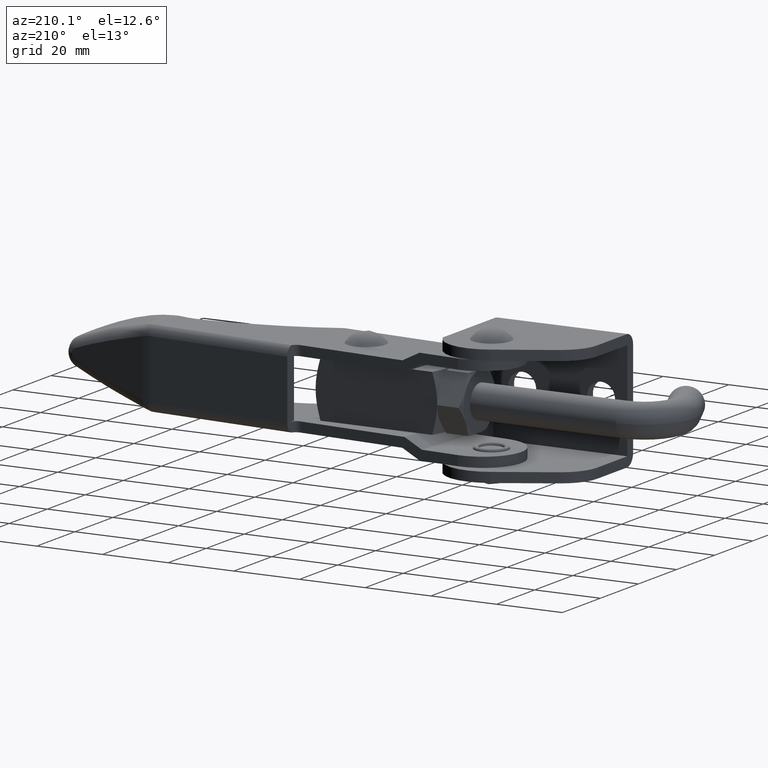
[diagram: clean part render]
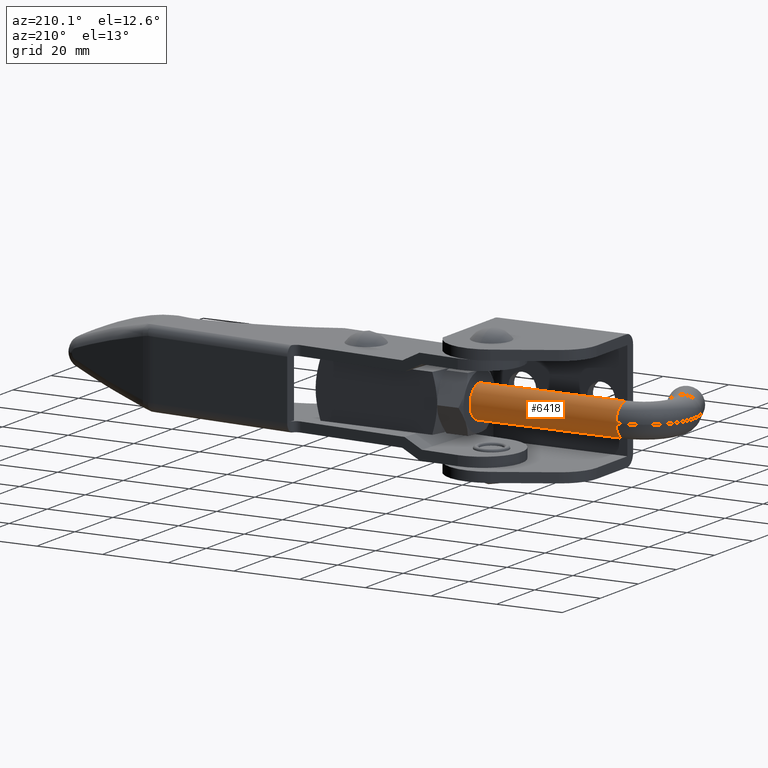
[diagram: same view with one face highlighted and labeled with its STEP entity id]
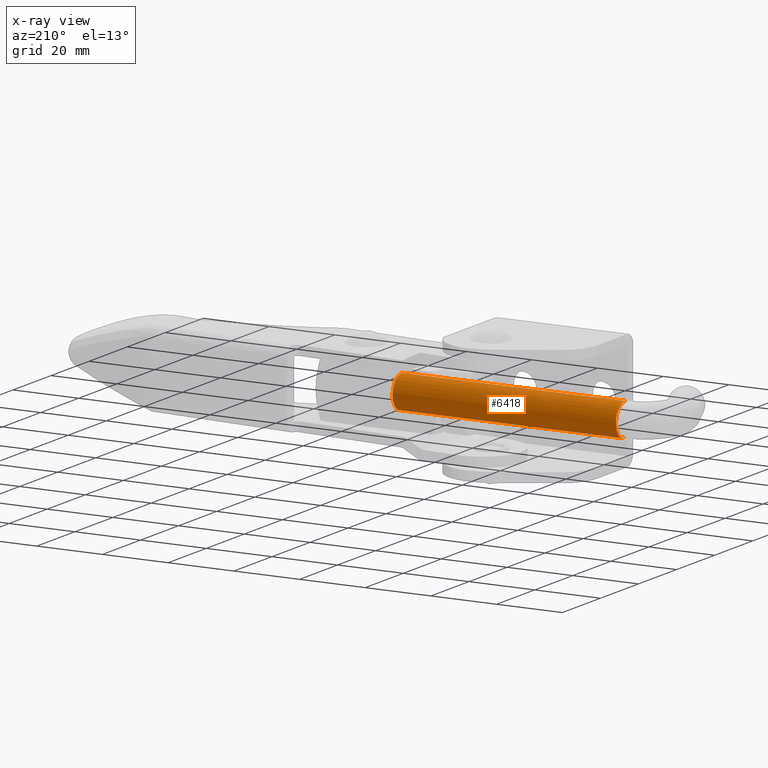
[diagram: x-ray of the same camera — body ghosted, the highlighted face saturated]
A machine part, auxiliary view. The second image highlights one B-rep face of the part: STEP entity #6418.
The next image is the same camera in x-ray: the body ghosted, the highlighted face saturated — about 0% of this face is hidden behind the body in this view.
In plain terms, the highlighted cylindrical surface (edge-blend (fillet) strip) has radius 5 mm, axis along (1, 0.0007, -0).
Its self-contained STEP definition (entity closure, byte-faithful):
#4 = DIRECTION ( 'NONE',  ( 0.0000000000000000000, 4.186201327120098000E-030, -1.000000000000000000 ) ) ;
#131 = CIRCLE ( 'NONE', #8940, 4.999999999999997300 ) ;
#233 = VERTEX_POINT ( 'NONE', #961 ) ;
#292 = EDGE_CURVE ( 'NONE', #3102, #7408, #2602, .T. ) ;
#489 = DIRECTION ( 'NONE',  ( 0.0000000000000000000, 4.186201327120098000E-030, -1.000000000000000000 ) ) ;
#626 = VECTOR ( 'NONE', #7035, 1000.000000000000000 ) ;
#721 = DIRECTION ( 'NONE',  ( 0.0000000000000000000, 4.186201327120098000E-030, -1.000000000000000000 ) ) ;
#961 = CARTESIAN_POINT ( 'NONE',  ( -1.000000000000014700, 2.093100663560047900E-029, -4.999999999999997300 ) ) ;
#1062 = DIRECTION ( 'NONE',  ( -1.000000000000000000, -0.0000000000000000000, -4.930380657631322000E-031 ) ) ;
#1087 = CIRCLE ( 'NONE', #8280, 4.999999999999997300 ) ;
#1239 = CARTESIAN_POINT ( 'NONE',  ( -69.00000000000005700, 2.093100663560047900E-029, -4.999999999999997300 ) ) ;
#2014 = CYLINDRICAL_SURFACE ( 'NONE', #6352, 4.999999999999997300 ) ;
#2036 = ORIENTED_EDGE ( 'NONE', *, *, #2582, .F. ) ;
#2238 = FACE_OUTER_BOUND ( 'NONE', #8328, .T. ) ;
#2404 = ORIENTED_EDGE ( 'NONE', *, *, #6614, .T. ) ;
#2582 = EDGE_CURVE ( 'NONE', #5883, #233, #8657, .T. ) ;
#2602 = LINE ( 'NONE', #2786, #626 ) ;
#2704 = CARTESIAN_POINT ( 'NONE',  ( -69.00000000000005700, 0.0000000000000000000, -2.465190328815661900E-029 ) ) ;
#2786 = CARTESIAN_POINT ( 'NONE',  ( -69.00000000000005700, 6.123233995736557200E-016, 4.999999999999997300 ) ) ;
#2965 = CARTESIAN_POINT ( 'NONE',  ( -69.00000000000005700, 4.999999999999995600, 6.279301990680147100E-029 ) ) ;
#3102 = VERTEX_POINT ( 'NONE', #5226 ) ;
#3121 = ORIENTED_EDGE ( 'NONE', *, *, #292, .T. ) ;
#3387 = EDGE_CURVE ( 'NONE', #7408, #233, #3839, .T. ) ;
#3423 = DIRECTION ( 'NONE',  ( 1.000000000000000000, 0.0000000000000000000, 4.930380657631322000E-031 ) ) ;
#3429 = ORIENTED_EDGE ( 'NONE', *, *, #9555, .T. ) ;
#3839 = CIRCLE ( 'NONE', #7529, 4.999999999999997300 ) ;
#4435 = DIRECTION ( 'NONE',  ( 1.000000000000000000, 0.0000000000000000000, 4.930380657631322000E-031 ) ) ;
#4521 = ORIENTED_EDGE ( 'NONE', *, *, #3387, .T. ) ;
#5190 = DIRECTION ( 'NONE',  ( 1.000000000000000000, 0.0000000000000000000, 4.930380657631322000E-031 ) ) ;
#5226 = CARTESIAN_POINT ( 'NONE',  ( -69.00000000000005700, 6.123233995736560200E-016, 5.000000000000000000 ) ) ;
#5489 = CARTESIAN_POINT ( 'NONE',  ( -1.000000000000014700, 6.123233995736560200E-016, 5.000000000000000000 ) ) ;
#5533 = CARTESIAN_POINT ( 'NONE',  ( -1.000000000000014700, 0.0000000000000000000, 0.0000000000000000000 ) ) ;
#5883 = VERTEX_POINT ( 'NONE', #1239 ) ;
#5909 = VERTEX_POINT ( 'NONE', #2965 ) ;
#6272 = DIRECTION ( 'NONE',  ( 0.0000000000000000000, 4.186201327120098000E-030, -1.000000000000000000 ) ) ;
#6352 = AXIS2_PLACEMENT_3D ( 'NONE', #2704, #7887, #489 ) ;
#6418 = ADVANCED_FACE ( 'NONE', ( #2238 ), #2014, .T. ) ;
#6614 = EDGE_CURVE ( 'NONE', #5883, #5909, #1087, .T. ) ;
#6721 = VECTOR ( 'NONE', #3423, 1000.000000000000000 ) ;
#7035 = DIRECTION ( 'NONE',  ( 1.000000000000000000, 0.0000000000000000000, 4.930380657631322000E-031 ) ) ;
#7408 = VERTEX_POINT ( 'NONE', #5489 ) ;
#7529 = AXIS2_PLACEMENT_3D ( 'NONE', #5533, #1062, #6272 ) ;
#7870 = CARTESIAN_POINT ( 'NONE',  ( -69.00000000000005700, 0.0000000000000000000, -2.465190328815661900E-029 ) ) ;
#7887 = DIRECTION ( 'NONE',  ( 1.000000000000000000, 0.0000000000000000000, 4.930380657631322000E-031 ) ) ;
#8280 = AXIS2_PLACEMENT_3D ( 'NONE', #8825, #4435, #4 ) ;
#8328 = EDGE_LOOP ( 'NONE', ( #2404, #3429, #3121, #4521, #2036 ) ) ;
#8572 = CARTESIAN_POINT ( 'NONE',  ( -69.00000000000005700, 2.093100663560047900E-029, -4.999999999999997300 ) ) ;
#8657 = LINE ( 'NONE', #8572, #6721 ) ;
#8825 = CARTESIAN_POINT ( 'NONE',  ( -69.00000000000005700, 0.0000000000000000000, -2.465190328815661900E-029 ) ) ;
#8940 = AXIS2_PLACEMENT_3D ( 'NONE', #7870, #5190, #721 ) ;
#9555 = EDGE_CURVE ( 'NONE', #5909, #3102, #131, .T. ) ;